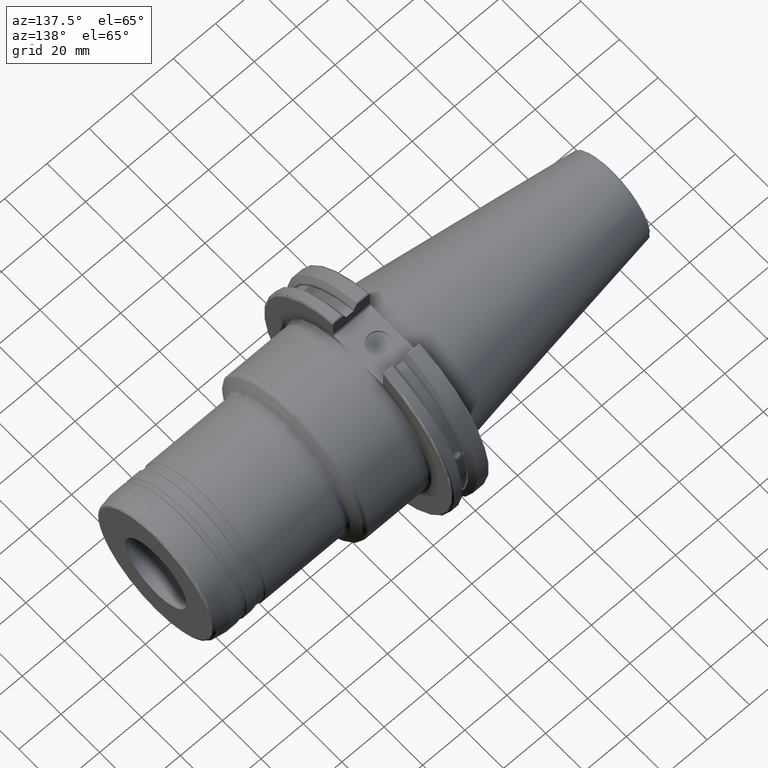
[diagram: clean part render]
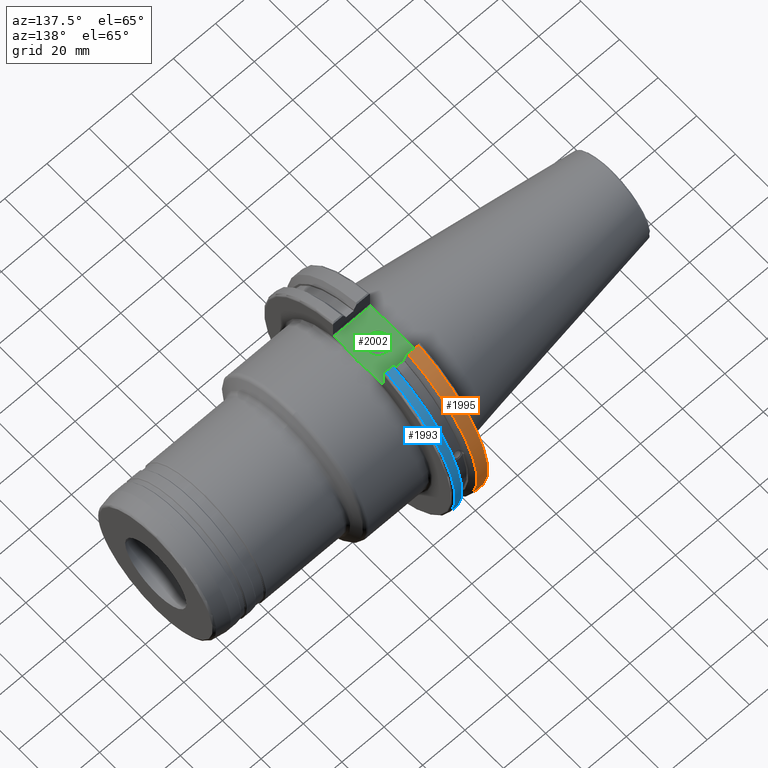
[diagram: same view with three faces highlighted in distinct colors, each labeled with its STEP entity id]
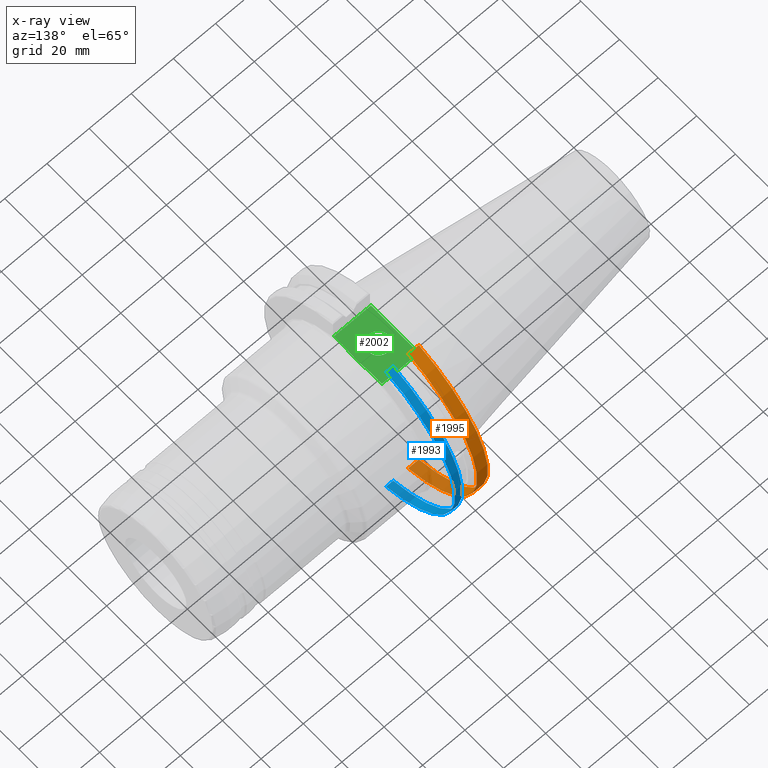
[diagram: x-ray of the same camera — body ghosted, the three highlighted faces saturated]
A machine part, auxiliary view with three faces highlighted in distinct colors.
The next image is the same camera in x-ray (body ghosted, the three faces saturated) — at least one of them is partly hidden behind the body in this view.
Their STEP definitions:

[orange] entity #1995 — the highlighted cylindrical surface (partial cylindrical patch) has radius 49.2125 mm, axis along (1, 0, 0).
#163=CYLINDRICAL_SURFACE('',#2246,49.2125);
#253=LINE('',#3896,#360);
#269=LINE('',#3958,#376);
#360=VECTOR('',#2740,10.);
#376=VECTOR('',#2800,10.);
#492=FACE_OUTER_BOUND('',#616,.T.);
#616=EDGE_LOOP('',(#1796,#1797,#1798,#1799));
#732=CIRCLE('',#2186,49.2125);
#745=CIRCLE('',#2219,49.2125);
#902=VERTEX_POINT('',#3635);
#903=VERTEX_POINT('',#3639);
#943=VERTEX_POINT('',#3851);
#944=VERTEX_POINT('',#3860);
#1154=EDGE_CURVE('',#902,#903,#732,.T.);
#1215=EDGE_CURVE('',#943,#944,#745,.T.);
#1228=EDGE_CURVE('',#944,#902,#253,.T.);
#1255=EDGE_CURVE('',#903,#943,#269,.T.);
#1796=ORIENTED_EDGE('',*,*,#1215,.F.);
#1797=ORIENTED_EDGE('',*,*,#1255,.F.);
#1798=ORIENTED_EDGE('',*,*,#1154,.F.);
#1799=ORIENTED_EDGE('',*,*,#1228,.F.);
#1995=ADVANCED_FACE('',(#492),#163,.T.);
#2186=AXIS2_PLACEMENT_3D('',#3640,#2631,#2632);
#2219=AXIS2_PLACEMENT_3D('',#3861,#2722,#2723);
#2246=AXIS2_PLACEMENT_3D('',#3959,#2801,#2802);
#2631=DIRECTION('center_axis',(1.,0.,0.));
#2632=DIRECTION('ref_axis',(0.,0.,-1.));
#2722=DIRECTION('center_axis',(-1.,0.,0.));
#2723=DIRECTION('ref_axis',(0.,1.,-6.12323399573677E-17));
#2740=DIRECTION('',(1.,0.,0.));
#2800=DIRECTION('',(-1.,0.,0.));
#2801=DIRECTION('center_axis',(1.,0.,0.));
#2802=DIRECTION('ref_axis',(0.,1.,0.));
#3635=CARTESIAN_POINT('',(7.60799096595127,13.4317035994433,-47.3440544806494));
#3639=CARTESIAN_POINT('',(7.60799096595127,13.4317035994433,47.3440544806494));
#3640=CARTESIAN_POINT('Origin',(7.60799096595127,0.,0.));
#3851=CARTESIAN_POINT('',(2.5,13.4317035994433,47.3440544806494));
#3860=CARTESIAN_POINT('',(2.5,13.4317035994433,-47.3440544806494));
#3861=CARTESIAN_POINT('Origin',(2.5,0.,0.));
#3896=CARTESIAN_POINT('',(4.55399548297564,13.4317035994433,-47.3440544806494));
#3958=CARTESIAN_POINT('',(4.55399548297563,13.4317035994433,47.3440544806494));
#3959=CARTESIAN_POINT('Origin',(4.55399548297564,0.,0.));

[blue] entity #1993 — the highlighted cylindrical surface (partial cylindrical patch) has radius 49.2125 mm, axis along (1, 0, 0).
#162=CYLINDRICAL_SURFACE('',#2243,49.2125);
#228=LINE('',#3721,#335);
#268=LINE('',#3951,#375);
#335=VECTOR('',#2679,10.);
#375=VECTOR('',#2793,10.);
#490=FACE_OUTER_BOUND('',#614,.T.);
#614=EDGE_LOOP('',(#1788,#1789,#1790,#1791));
#740=CIRCLE('',#2204,49.2125);
#754=CIRCLE('',#2244,49.2125);
#916=VERTEX_POINT('',#3695);
#917=VERTEX_POINT('',#3704);
#919=VERTEX_POINT('',#3717);
#964=VERTEX_POINT('',#3950);
#1175=EDGE_CURVE('',#916,#917,#740,.T.);
#1179=EDGE_CURVE('',#919,#916,#228,.T.);
#1252=EDGE_CURVE('',#917,#964,#268,.T.);
#1254=EDGE_CURVE('',#919,#964,#754,.T.);
#1788=ORIENTED_EDGE('',*,*,#1175,.F.);
#1789=ORIENTED_EDGE('',*,*,#1179,.F.);
#1790=ORIENTED_EDGE('',*,*,#1254,.T.);
#1791=ORIENTED_EDGE('',*,*,#1252,.F.);
#1993=ADVANCED_FACE('',(#490),#162,.T.);
#2204=AXIS2_PLACEMENT_3D('',#3705,#2674,#2675);
#2243=AXIS2_PLACEMENT_3D('',#3955,#2794,#2795);
#2244=AXIS2_PLACEMENT_3D('',#3956,#2796,#2797);
#2674=DIRECTION('center_axis',(1.,0.,0.));
#2675=DIRECTION('ref_axis',(0.,1.,-6.12323399573677E-17));
#2679=DIRECTION('',(1.,0.,0.));
#2793=DIRECTION('',(-1.,0.,0.));
#2794=DIRECTION('center_axis',(1.,0.,0.));
#2795=DIRECTION('ref_axis',(0.,1.,0.));
#2796=DIRECTION('center_axis',(1.,0.,0.));
#2797=DIRECTION('ref_axis',(0.,0.,-1.));
#3695=CARTESIAN_POINT('',(18.05,13.4317035994433,-47.3440544806494));
#3704=CARTESIAN_POINT('',(18.05,13.4317035994433,47.3440544806494));
#3705=CARTESIAN_POINT('Origin',(18.05,0.,0.));
#3717=CARTESIAN_POINT('',(14.6602090340487,13.4317035994433,-47.3440544806494));
#3721=CARTESIAN_POINT('',(16.8551045170244,13.4317035994433,-47.3440544806494));
#3950=CARTESIAN_POINT('',(14.6602090340487,13.4317035994433,47.3440544806494));
#3951=CARTESIAN_POINT('',(16.8551045170244,13.4317035994433,47.3440544806494));
#3955=CARTESIAN_POINT('Origin',(16.8551045170244,0.,0.));
#3956=CARTESIAN_POINT('Origin',(14.6602090340487,0.,0.));

[green] entity #2002 — the highlighted planar face has unit normal (0, 0, 1).
#35=B_SPLINE_CURVE_WITH_KNOTS('',3,(#3038,#3039,#3040,#3041,#3042,#3043,
#3044,#3045,#3046,#3047),.UNSPECIFIED.,.F.,.F.,(4,2,2,2,4),(1.54626117702093,
1.78858326297467,2.27088299410256,2.75318272523045,2.99550481118419),
 .UNSPECIFIED.);
#94=FACE_BOUND('',#624,.T.);
#132=PLANE('',#2258);
#183=LINE('',#3084,#290);
#190=LINE('',#3101,#297);
#246=LINE('',#3882,#353);
#258=LINE('',#3927,#365);
#260=LINE('',#3930,#367);
#290=VECTOR('',#2482,10.);
#297=VECTOR('',#2495,10.);
#353=VECTOR('',#2729,10.);
#365=VECTOR('',#2771,10.);
#367=VECTOR('',#2775,10.);
#499=FACE_OUTER_BOUND('',#623,.T.);
#623=EDGE_LOOP('',(#1828,#1829,#1830,#1831,#1832,#1833));
#624=EDGE_LOOP('',(#1834));
#756=CIRCLE('',#2250,4.7625);
#824=VERTEX_POINT('',#3036);
#825=VERTEX_POINT('',#3037);
#830=VERTEX_POINT('',#3083);
#837=VERTEX_POINT('',#3099);
#946=VERTEX_POINT('',#3879);
#947=VERTEX_POINT('',#3881);
#967=VERTEX_POINT('',#3966);
#1051=EDGE_CURVE('',#824,#825,#35,.F.);
#1058=EDGE_CURVE('',#824,#830,#183,.T.);
#1067=EDGE_CURVE('',#837,#825,#190,.T.);
#1220=EDGE_CURVE('',#946,#947,#246,.T.);
#1241=EDGE_CURVE('',#830,#946,#258,.T.);
#1243=EDGE_CURVE('',#947,#837,#260,.T.);
#1258=EDGE_CURVE('',#967,#967,#756,.T.);
#1828=ORIENTED_EDGE('',*,*,#1241,.F.);
#1829=ORIENTED_EDGE('',*,*,#1058,.F.);
#1830=ORIENTED_EDGE('',*,*,#1051,.T.);
#1831=ORIENTED_EDGE('',*,*,#1067,.F.);
#1832=ORIENTED_EDGE('',*,*,#1243,.F.);
#1833=ORIENTED_EDGE('',*,*,#1220,.F.);
#1834=ORIENTED_EDGE('',*,*,#1258,.T.);
#2002=ADVANCED_FACE('',(#499,#94),#132,.T.);
#2250=AXIS2_PLACEMENT_3D('',#3967,#2810,#2811);
#2258=AXIS2_PLACEMENT_3D('',#3976,#2827,#2828);
#2482=DIRECTION('',(0.,-1.,0.));
#2495=DIRECTION('',(0.,-1.,0.));
#2729=DIRECTION('',(0.,1.,0.));
#2771=DIRECTION('',(-1.,1.19700595646917E-16,0.));
#2775=DIRECTION('',(1.,0.,0.));
#2810=DIRECTION('center_axis',(0.,0.,-1.));
#2811=DIRECTION('ref_axis',(1.,0.,0.));
#2827=DIRECTION('center_axis',(0.,0.,1.));
#2828=DIRECTION('ref_axis',(1.,0.,0.));
#3036=CARTESIAN_POINT('',(19.05,-7.71537678924366,37.719));
#3037=CARTESIAN_POINT('',(19.05,7.71537678924366,37.719));
#3038=CARTESIAN_POINT('Ctrl Pts',(19.05,7.71537678924366,37.719));
#3039=CARTESIAN_POINT('Ctrl Pts',(19.05,6.90763650273118,37.719));
#3040=CARTESIAN_POINT('Ctrl Pts',(19.0964852002565,5.93946347087548,37.719));
#3041=CARTESIAN_POINT('Ctrl Pts',(19.2527508010395,3.52911754509875,37.719));
#3042=CARTESIAN_POINT('Ctrl Pts',(19.4254689759508,1.6076657704263,37.719));
#3043=CARTESIAN_POINT('Ctrl Pts',(19.4254689759508,-1.6076657704263,37.719));
#3044=CARTESIAN_POINT('Ctrl Pts',(19.2527508010395,-3.52911754509875,37.719));
#3045=CARTESIAN_POINT('Ctrl Pts',(19.0964852002565,-5.93946347087548,37.719));
#3046=CARTESIAN_POINT('Ctrl Pts',(19.05,-6.90763650273118,37.719));
#3047=CARTESIAN_POINT('Ctrl Pts',(19.05,-7.71537678924366,37.719));
#3083=CARTESIAN_POINT('',(19.05,-12.45,37.719));
#3084=CARTESIAN_POINT('',(19.05,0.,37.719));
#3099=CARTESIAN_POINT('',(19.05,12.45,37.719));
#3101=CARTESIAN_POINT('',(19.05,0.,37.719));
#3879=CARTESIAN_POINT('',(1.5,-12.45,37.719));
#3881=CARTESIAN_POINT('',(1.5,12.45,37.719));
#3882=CARTESIAN_POINT('',(1.5,24.60625,37.719));
#3927=CARTESIAN_POINT('',(9.375,-12.45,37.719));
#3930=CARTESIAN_POINT('',(18.65,12.45,37.719));
#3966=CARTESIAN_POINT('',(4.6966,-5.83238038093927E-16,37.719));
#3967=CARTESIAN_POINT('Origin',(9.4591,0.,37.719));
#3976=CARTESIAN_POINT('Origin',(17.25,0.,37.719));